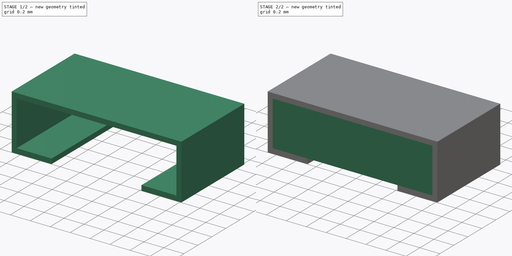
[diagram: build sequence overview — one tinted view per stage of 2, left to right]
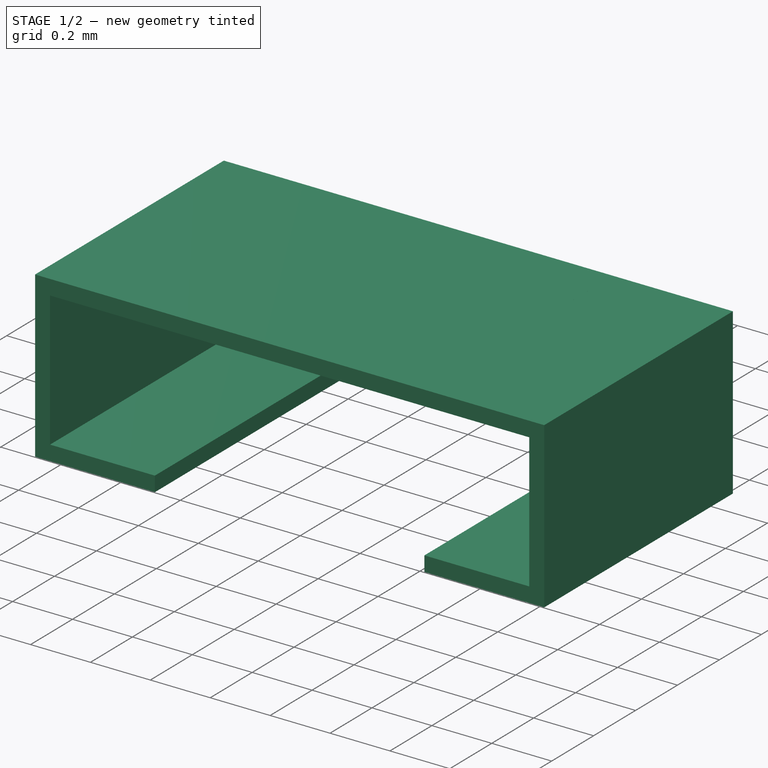
[diagram: stage 1 of 2 — iso view after this stage's code; geometry added in this stage tinted green]
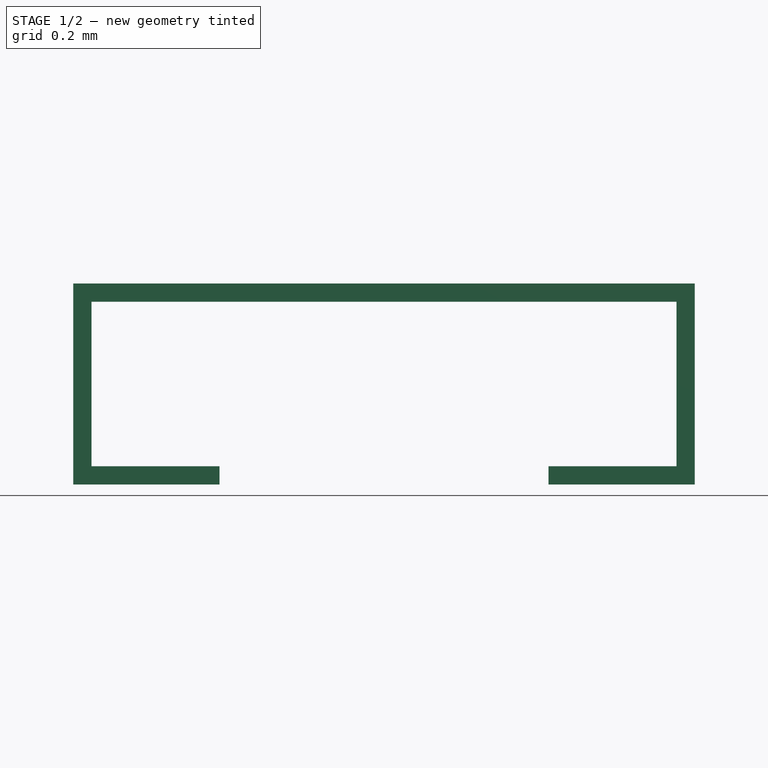
[diagram: stage 1 of 2 — front view after this stage's code; geometry added in this stage tinted green]
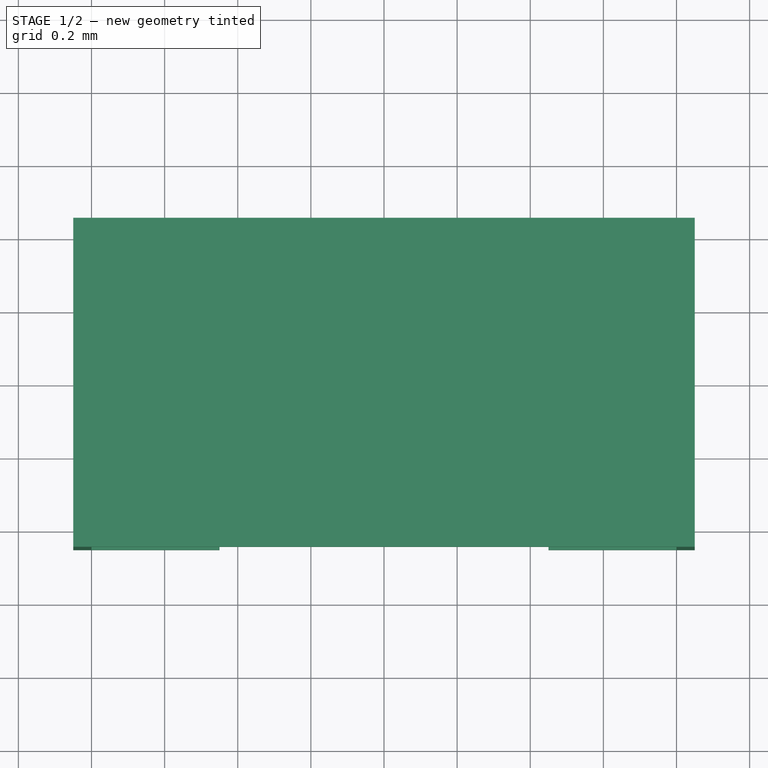
[diagram: stage 1 of 2 — top view after this stage's code; geometry added in this stage tinted green]
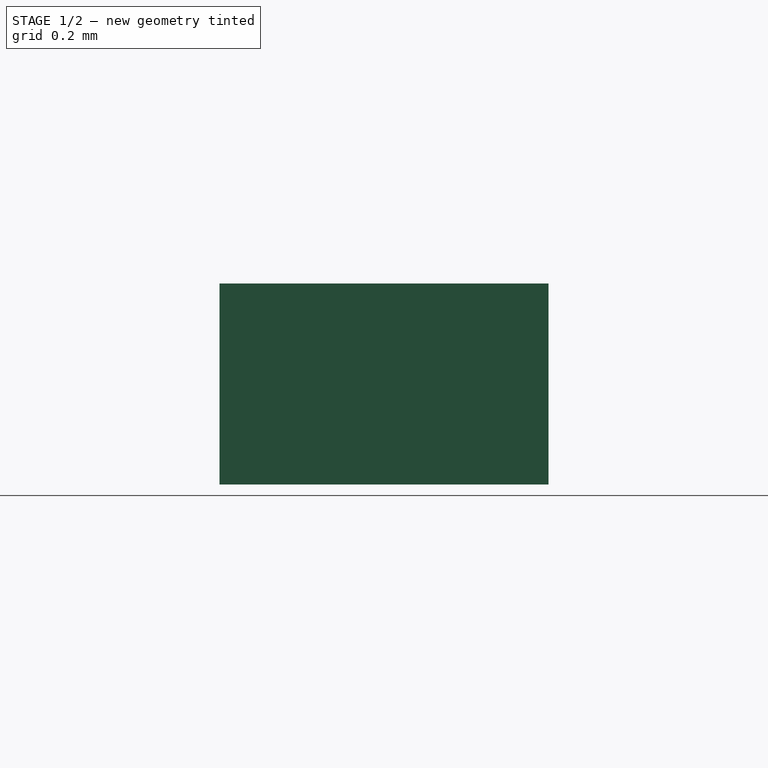
[diagram: stage 1 of 2 — right view after this stage's code; geometry added in this stage tinted green]
FCSTD DOCUMENT  (FreeCAD 0.18R4 (GitTag))
Label: RES-0603
License: All rights reserved
LicenseURL: http://en.wikipedia.org/wiki/All_rights_reserved
objects: Sketcher::SketchObject×3, Part::Extrusion×3, PartDesign::Body×1
note: 7 computed .brp shape members not serialized (recipe doc carries the construction recipe); baked Part::Feature solids carry a one-line shape summary decoded from their .brp

FEATURE [Sketcher::SketchObject] Sketch001  label="Pin-sk"
  AttachmentOffset = pos=(0,0,-0.45) rot=(0,0,1;0rad)
  MapMode = 5
  Placement = pos=(0,0.45,-1e-16) rot=(1,0,0;1.5708rad)
  Support = -> [XZ_Plane]
  sketch-geometry (16):
    g0: LineSegment StartX=-0.45 StartY=0.55 StartZ=0 EndX=-0.85 EndY=0.55 EndZ=0
    g1: LineSegment StartX=-0.85 StartY=0.55 StartZ=0 EndX=-0.85 EndY=0 EndZ=0
    g2: LineSegment StartX=-0.85 StartY=0 StartZ=0 EndX=-0.45 EndY=0 EndZ=0
    g3: LineSegment StartX=-0.45 StartY=0 StartZ=0 EndX=-0.45 EndY=0.05 EndZ=0
    g4: LineSegment StartX=-0.45 StartY=0.05 StartZ=0 EndX=-0.8 EndY=0.05 EndZ=0
    g5: LineSegment StartX=-0.8 StartY=0.05 StartZ=0 EndX=-0.8 EndY=0.5 EndZ=0
    g6: LineSegment StartX=-0.8 StartY=0.5 StartZ=0 EndX=-0.45 EndY=0.5 EndZ=0
    g7: LineSegment StartX=-0.45 StartY=0.5 StartZ=0 EndX=-0.45 EndY=0.55 EndZ=0
    g8: LineSegment StartX=0.45 StartY=0.55 StartZ=0 EndX=0.85 EndY=0.55 EndZ=0
    g9: LineSegment StartX=0.85 StartY=0.55 StartZ=0 EndX=0.85 EndY=0 EndZ=0
    g10: LineSegment StartX=0.85 StartY=0 StartZ=0 EndX=0.45 EndY=0 EndZ=0
    g11: LineSegment StartX=0.45 StartY=0 StartZ=0 EndX=0.45 EndY=0.05 EndZ=0
    g12: LineSegment StartX=0.45 StartY=0.05 StartZ=0 EndX=0.8 EndY=0.05 EndZ=0
    g13: LineSegment StartX=0.8 StartY=0.05 StartZ=0 EndX=0.8 EndY=0.5 EndZ=0
    g14: LineSegment StartX=0.8 StartY=0.5 StartZ=0 EndX=0.45 EndY=0.5 EndZ=0
    g15: LineSegment StartX=0.45 StartY=0.5 StartZ=0 EndX=0.45 EndY=0.55 EndZ=0
  constraints (40):
    c: Coincident(g0,g1)
    c: Coincident(g1,g2)
    c: Coincident(g2,g3)
    c: Coincident(g3,g4)
    c: Coincident(g4,g5)
    c: Coincident(g5,g6)
    c: Coincident(g6,g7)
    c: Coincident(g7,g0)
    c: Coincident(g8,g9)
    c: Coincident(g9,g10)
    c: Coincident(g10,g11)
    c: Coincident(g11,g12)
    c: Coincident(g12,g13)
    c: Coincident(g13,g14)
    c: Coincident(g14,g15)
    c: Coincident(g15,g8)
    c: Horizontal(g0)
    c: Horizontal(g6)
    c: Horizontal(g4)
    c: Horizontal(g2)
    c: Vertical(g7)
    c: Vertical(g5)
    c: Vertical(g3)
    c: Equal(g7,g3)
    c: Equal(g6,g4)
    c: Equal(g2,g0)
    c: PointOnObject(g2,g-1)
    c: DistanceY(g1,g1) = 0.55
    c: DistanceY(g7,g7) = 0.05
    c: DistanceX(g0,g5) = 0.05
    c: Symmetric(g0,g8,g-2)
    c: Symmetric(g6,g14,g-2)
    c: Symmetric(g13,g5,g-2)
    c: Symmetric(g12,g4,g-2)
    c: Symmetric(g11,g3,g-2)
    c: Symmetric(g10,g2,g-2)
    c: Symmetric(g9,g1,g-2)
    c: Symmetric(g8,g0,g-2)
    c: DistanceX(g0,g8) = 1.7
    c: DistanceX(g0,g0) = 0.4
FEATURE [Part::Extrusion] Extrude001  label="Pin"
  Base = -> Sketch001
  Dir = (0,-1,2e-16)
  DirMode = 2
  FaceMakerClass = Part::FaceMakerBullseye
  LengthFwd = 0.9
  LengthRev = 0
  Solid = true
  Symmetric = false
FEATURE [Sketcher::SketchObject] Sketch002  label="Body-top-sk"
  AttachmentOffset = pos=(0,0,-0.45) rot=(0,0,1;0rad)
  MapMode = 5
  Placement = pos=(0,0.45,-1e-16) rot=(1,0,0;1.5708rad)
  Support = -> [XZ_Plane]
  sketch-geometry (4):
    g0: LineSegment StartX=-0.45 StartY=0.55 StartZ=0 EndX=0.45 EndY=0.55 EndZ=0
    g1: LineSegment StartX=0.45 StartY=0.55 StartZ=0 EndX=0.45 EndY=0.5 EndZ=0
    g2: LineSegment StartX=0.45 StartY=0.5 StartZ=0 EndX=-0.45 EndY=0.5 EndZ=0
    g3: LineSegment StartX=-0.45 StartY=0.5 StartZ=0 EndX=-0.45 EndY=0.55 EndZ=0
  constraints (11):
    c: Coincident(g0,g1)
    c: Coincident(g1,g2)
    c: Coincident(g2,g3)
    c: Coincident(g3,g0)
    c: Horizontal(g2)
    c: Vertical(g1)
    c: Vertical(g3)
    c: Symmetric(g0,g0,g-2)
    c: DistanceY(g3,g3) = 0.05
    c: DistanceY(g-1,g0) = 0.55
    c: DistanceX(g0,g0) = 0.9
FEATURE [PartDesign::Body] Body
  Group = -> [Sketch,Sketch001,Sketch002]
  Origin = -> Origin
FEATURE [Part::Extrusion] Extrude002  label="Body-top"
  Base = -> Sketch002
  Dir = (0,-1,2e-16)
  DirMode = 2
  FaceMakerClass = Part::FaceMakerBullseye
  LengthFwd = 0.9
  LengthRev = 0
  Solid = true
  Symmetric = false
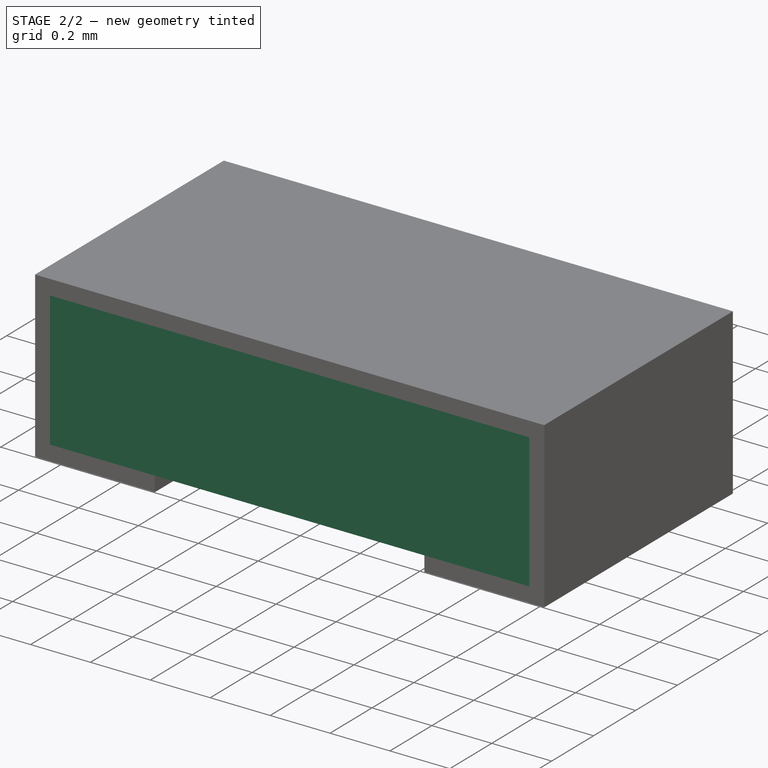
[diagram: stage 2 of 2 — iso view after this stage's code; geometry added in this stage tinted green]
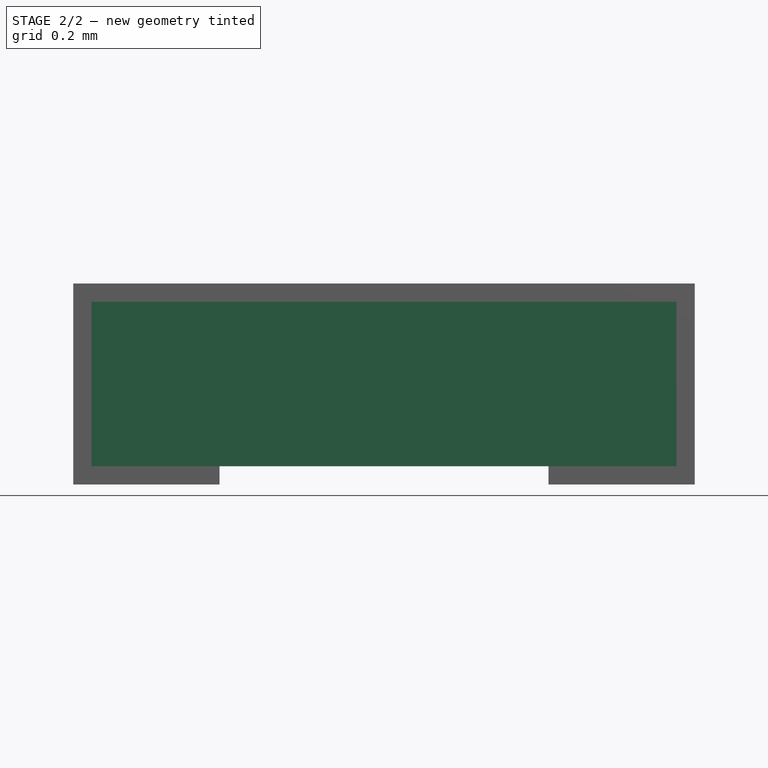
[diagram: stage 2 of 2 — front view after this stage's code; geometry added in this stage tinted green]
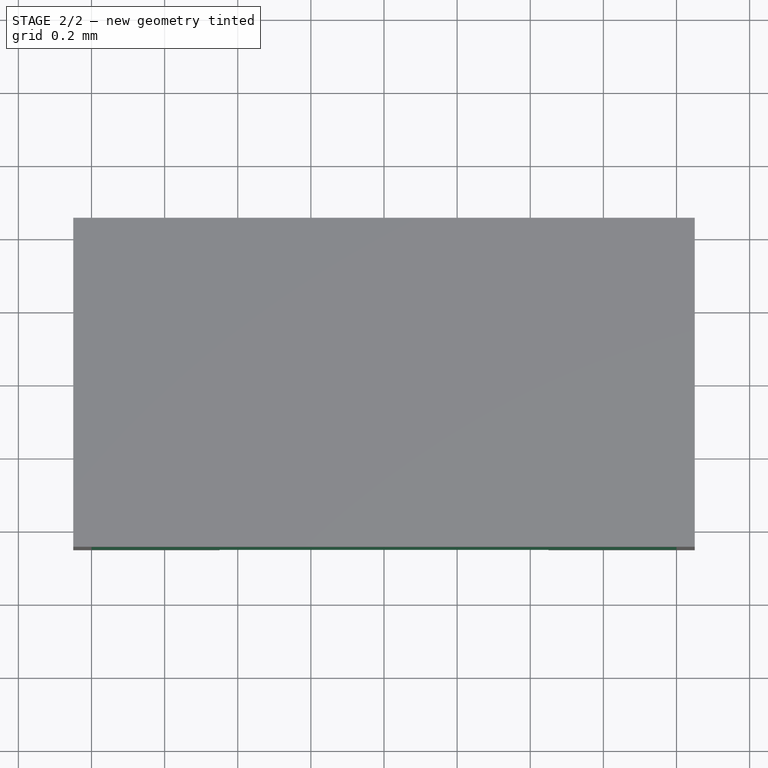
[diagram: stage 2 of 2 — top view after this stage's code; geometry added in this stage tinted green]
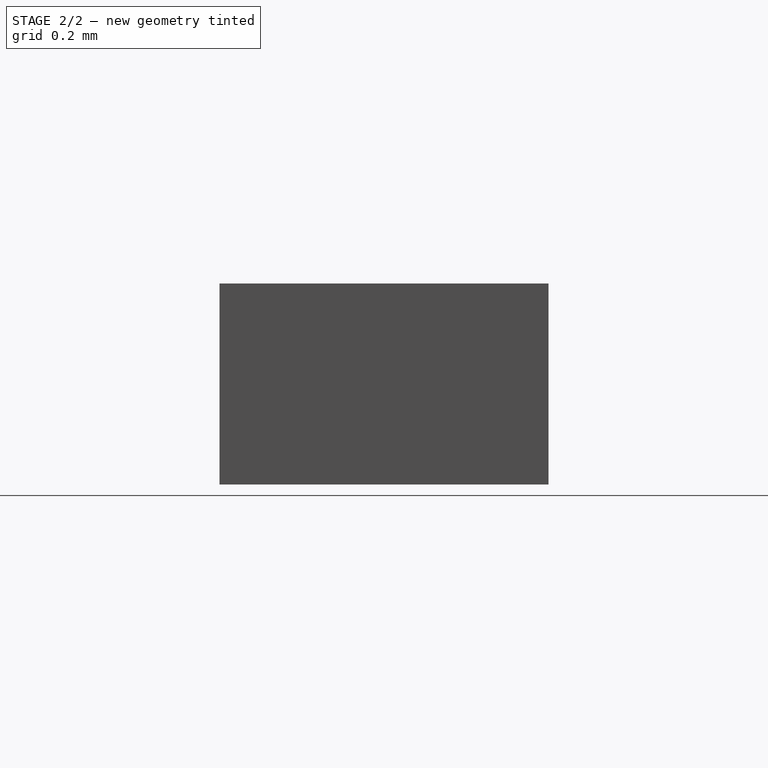
[diagram: stage 2 of 2 — right view after this stage's code; geometry added in this stage tinted green]
FEATURE [Sketcher::SketchObject] Sketch  label="Body-main-sk"
  AttachmentOffset = pos=(0,0,0.05) rot=(0,0,1;0rad)
  MapMode = 5
  Placement = pos=(0,0,0.05) rot=(0,0,1;0rad)
  Support = -> [XY_Plane]
  sketch-geometry (4):
    g0: LineSegment StartX=-0.8 StartY=0.45 StartZ=0 EndX=0.8 EndY=0.45 EndZ=0
    g1: LineSegment StartX=0.8 StartY=0.45 StartZ=0 EndX=0.8 EndY=-0.45 EndZ=0
    g2: LineSegment StartX=0.8 StartY=-0.45 StartZ=0 EndX=-0.8 EndY=-0.45 EndZ=0
    g3: LineSegment StartX=-0.8 StartY=-0.45 StartZ=0 EndX=-0.8 EndY=0.45 EndZ=0
  constraints (10):
    c: Coincident(g0,g1)
    c: Coincident(g1,g2)
    c: Coincident(g2,g3)
    c: Coincident(g3,g0)
    c: Horizontal(g2)
    c: Vertical(g1)
    c: Symmetric(g0,g0,g-2)
    c: Symmetric(g2,g0,g-1)
    c: DistanceX(g0,g0) = 1.6
    c: DistanceY(g1,g1) = 0.9
FEATURE [Part::Extrusion] Extrude  label="Body-main"
  Base = -> Sketch
  Dir = (0,0,1)
  DirMode = 2
  FaceMakerClass = Part::FaceMakerBullseye
  LengthFwd = 0.45
  LengthRev = 0
  Solid = true
  Symmetric = false
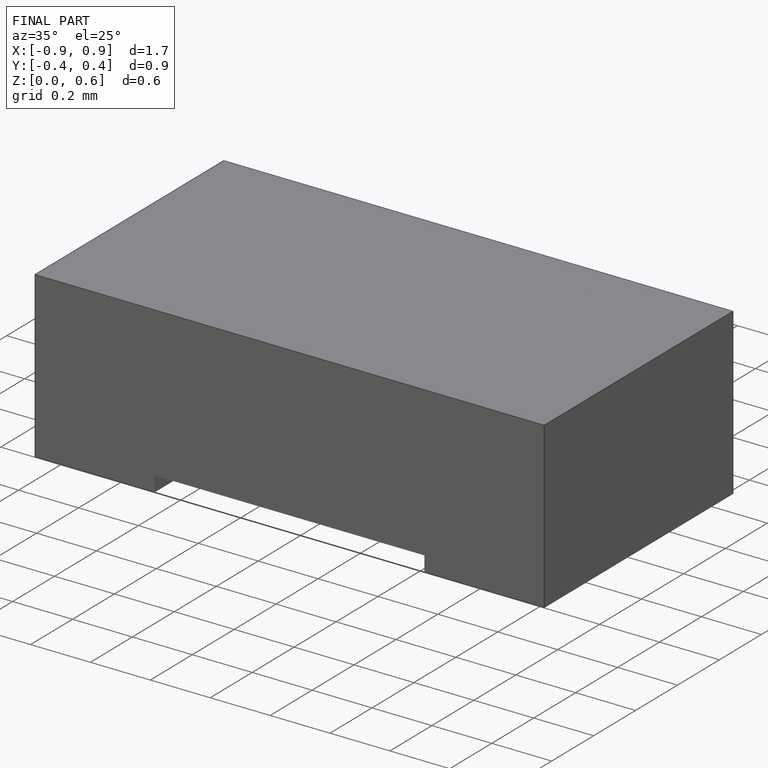
[diagram: finished part — iso view with bounding-box wireframe]
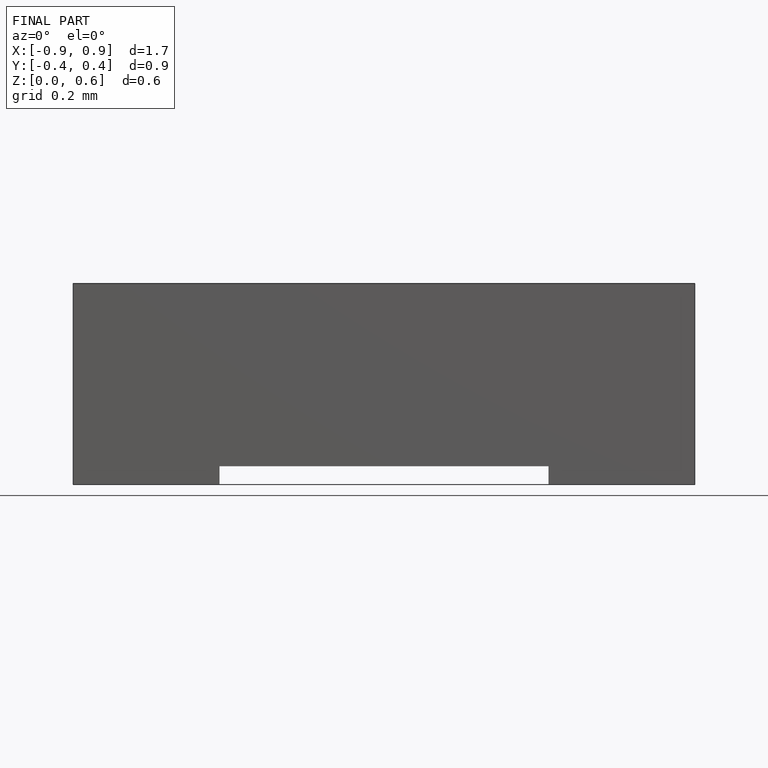
[diagram: finished part — front view with bounding-box wireframe]
